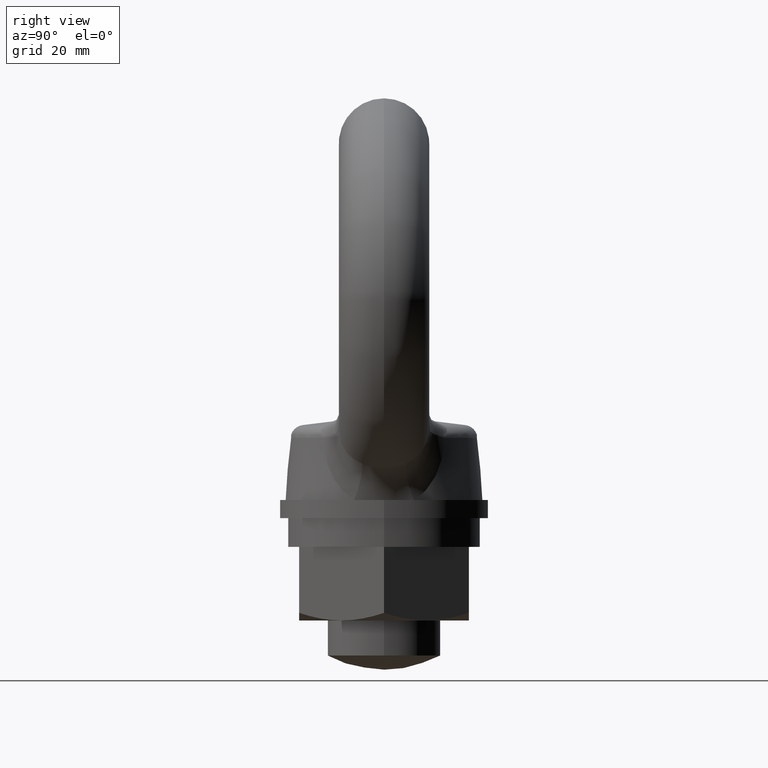
[diagram: clean part render]
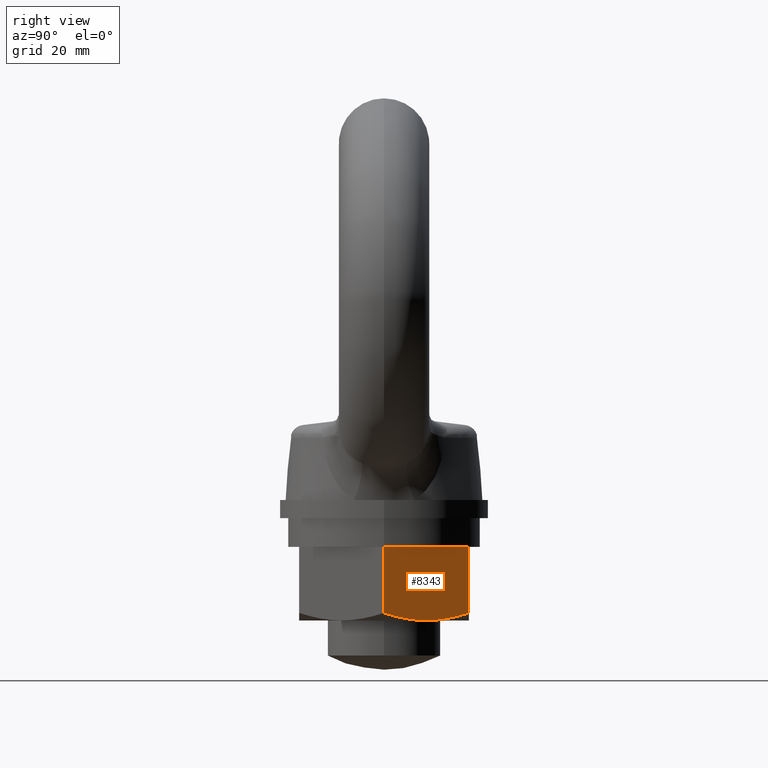
[diagram: same view with one face highlighted and labeled with its STEP entity id]
A machine part, right view. The second image highlights one B-rep face of the part: STEP entity #8343.
In plain terms, the highlighted planar face has unit normal (-0.866, -0.5, 0).
Its self-contained STEP definition (entity closure, byte-faithful):
#6828 = CARTESIAN_POINT ( 'NONE',  ( 12.99038069595821900, 7.500000624938359700, -56.30000300000009600 ) ) ;
#6829 = CARTESIAN_POINT ( 'NONE',  ( 12.25265591879470700, 8.777778046729524800, -56.30000278019127800 ) ) ;
#6830 = CARTESIAN_POINT ( 'NONE',  ( 11.52410142196416100, 10.03967131112626500, -56.17231792276339100 ) ) ;
#6831 = CARTESIAN_POINT ( 'NONE',  ( 10.08213228077249800, 12.53723484913699300, -55.70615241626605800 ) ) ;
#6832 = CARTESIAN_POINT ( 'NONE',  ( 9.368606131570551600, 13.77309825477910900, -55.36922427579862200 ) ) ;
#6833 = CARTESIAN_POINT ( 'NONE',  ( 8.660253999999998300, 15.00000000000000000, -54.96025704876919300 ) ) ;
#6834 = CARTESIAN_POINT ( 'NONE',  ( 8.660253999999998300, 15.00000000000000000, -54.96025704876919300 ) ) ;
#6835 = B_SPLINE_CURVE_WITH_KNOTS ( 'NONE', 3,
 ( #6833, #6832, #6831, #6830, #6829, #6828 ),
 .UNSPECIFIED., .F., .F.,
 ( 4, 2, 4 ),
 ( 2.380728901306220500E-007, 0.004381616994656343900, 0.008762995916422558500 ),
 .UNSPECIFIED. ) ;
#6836 = DIRECTION ( 'NONE',  ( 0.5000000416625577400, -0.8660253797305484900, 0.0000000000000000000 ) ) ;
#6837 = DIRECTION ( 'NONE',  ( -0.8660253797305484900, -0.5000000416625577400, 0.0000000000000000000 ) ) ;
#6838 = CARTESIAN_POINT ( 'NONE',  ( 17.32050900000000100, 0.0000000000000000000, 943.6999969999999400 ) ) ;
#6839 = AXIS2_PLACEMENT_3D ( 'NONE', #6838, #6837, #6836 ) ;
#6840 = PLANE ( 'NONE',  #6839 ) ;
#6856 = FACE_OUTER_BOUND ( 'NONE', #8334, .T. ) ;
#6903 = CARTESIAN_POINT ( 'NONE',  ( 8.660253999999998300, 15.00000000000000000, -43.29999900000014900 ) ) ;
#6904 = DIRECTION ( 'NONE',  ( 0.0000000000000000000, 0.0000000000000000000, -1.000000000000000000 ) ) ;
#6905 = VECTOR ( 'NONE', #6904, 1000.000000000000000 ) ;
#6906 = CARTESIAN_POINT ( 'NONE',  ( 8.660253999999998300, 15.00000000000000000, 943.6999969999999400 ) ) ;
#6907 = LINE ( 'NONE', #6906, #6905 ) ;
#7354 = CARTESIAN_POINT ( 'NONE',  ( 12.99038069595821900, 7.500000624938359700, -56.30000300000009600 ) ) ;
#7388 = CARTESIAN_POINT ( 'NONE',  ( 13.72699660571175800, 6.224145353032194600, -56.26833621857643700 ) ) ;
#7389 = CARTESIAN_POINT ( 'NONE',  ( 13.35786436503229000, 6.863501077568260600, -56.30000277748286700 ) ) ;
#7390 = CARTESIAN_POINT ( 'NONE',  ( 12.99038069595821900, 7.500000624938359700, -56.30000300000009600 ) ) ;
#7392 = B_SPLINE_CURVE_WITH_KNOTS ( 'NONE', 3,
 ( #7390, #7389, #7388, #7461, #7460, #7459, #7458, #7457 ),
 .UNSPECIFIED., .F., .F.,
 ( 4, 2, 2, 4 ),
 ( 0.008762995916422558500, 0.01094549400397555600, 0.01312799209152855400, 0.01749298826663455600 ),
 .UNSPECIFIED. ) ;
#7436 = CARTESIAN_POINT ( 'NONE',  ( 17.32050900000000100, 1.092005928705253900E-015, -54.96025650419309700 ) ) ;
#7456 = LINE ( 'NONE', #7509, #7508 ) ;
#7457 = CARTESIAN_POINT ( 'NONE',  ( 17.32050900000000100, 1.092005928705253900E-015, -54.96025650419309700 ) ) ;
#7458 = CARTESIAN_POINT ( 'NONE',  ( 16.61392576417441800, 1.223837928257742700, -55.36820252560203000 ) ) ;
#7459 = CARTESIAN_POINT ( 'NONE',  ( 15.90144742230583600, 2.457886478563569500, -55.70496989930615700 ) ) ;
#7460 = CARTESIAN_POINT ( 'NONE',  ( 14.81988494306981100, 4.331207436034268300, -56.05502835697175400 ) ) ;
#7461 = CARTESIAN_POINT ( 'NONE',  ( 14.45721702314277700, 4.959366629834631700, -56.14579008818820000 ) ) ;
#7507 = DIRECTION ( 'NONE',  ( -0.5000000416625576300, 0.8660253797305483800, 0.0000000000000000000 ) ) ;
#7508 = VECTOR ( 'NONE', #7507, 1000.000000000000200 ) ;
#7509 = CARTESIAN_POINT ( 'NONE',  ( 17.32050900000000100, 0.0000000000000000000, -43.29999900000014900 ) ) ;
#7537 = CARTESIAN_POINT ( 'NONE',  ( 17.32050900000000100, 0.0000000000000000000, -43.29999900000014900 ) ) ;
#7538 = DIRECTION ( 'NONE',  ( 0.0000000000000000000, 0.0000000000000000000, -1.000000000000000000 ) ) ;
#7539 = VECTOR ( 'NONE', #7538, 1000.000000000000000 ) ;
#7540 = CARTESIAN_POINT ( 'NONE',  ( 17.32050900000000100, 0.0000000000000000000, 943.6999969999999400 ) ) ;
#7541 = LINE ( 'NONE', #7540, #7539 ) ;
#8323 = ORIENTED_EDGE ( 'NONE', *, *, #8324, .F. ) ;
#8324 = EDGE_CURVE ( 'NONE', #8325, #8346, #6907, .T. ) ;
#8325 = VERTEX_POINT ( 'NONE', #6903 ) ;
#8326 = ORIENTED_EDGE ( 'NONE', *, *, #8485, .F. ) ;
#8334 = EDGE_LOOP ( 'NONE', ( #8344, #8323, #8326, #8486, #8487 ) ) ;
#8343 = ADVANCED_FACE ( 'NONE', ( #6856 ), #6840, .F. ) ;
#8344 = ORIENTED_EDGE ( 'NONE', *, *, #8345, .F. ) ;
#8345 = EDGE_CURVE ( 'NONE', #8346, #8382, #6835, .T. ) ;
#8346 = VERTEX_POINT ( 'NONE', #6834 ) ;
#8382 = VERTEX_POINT ( 'NONE', #7354 ) ;
#8485 = EDGE_CURVE ( 'NONE', #8510, #8325, #7456, .T. ) ;
#8486 = ORIENTED_EDGE ( 'NONE', *, *, #8509, .T. ) ;
#8487 = ORIENTED_EDGE ( 'NONE', *, *, #8488, .F. ) ;
#8488 = EDGE_CURVE ( 'NONE', #8382, #8694, #7392, .T. ) ;
#8509 = EDGE_CURVE ( 'NONE', #8510, #8694, #7541, .T. ) ;
#8510 = VERTEX_POINT ( 'NONE', #7537 ) ;
#8694 = VERTEX_POINT ( 'NONE', #7436 ) ;